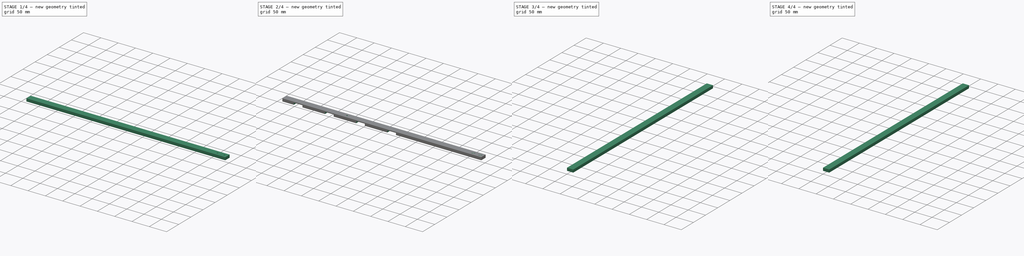
[diagram: build sequence overview — one tinted view per stage of 4, left to right]
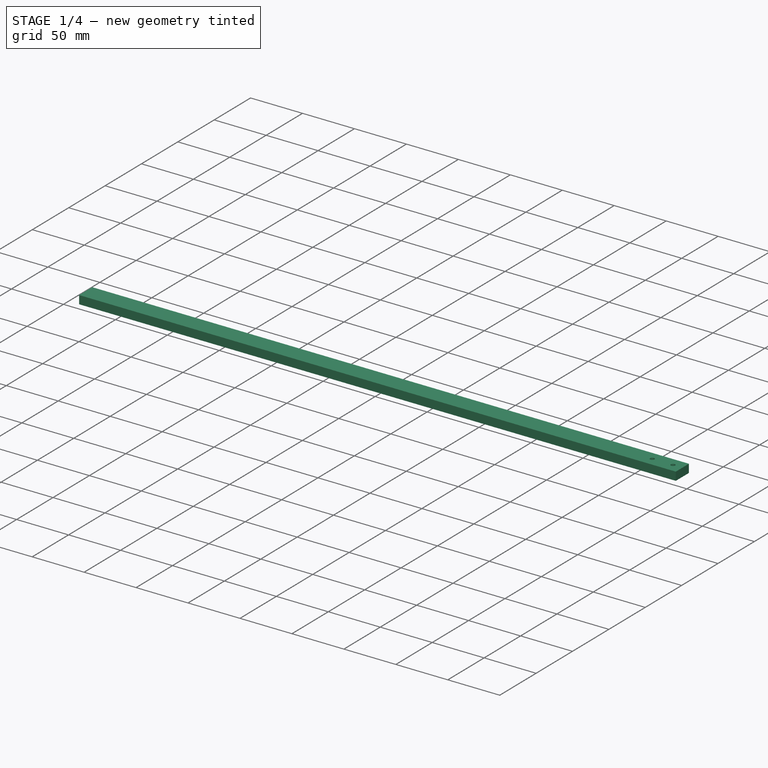
[diagram: stage 1 of 4 — iso view after this stage's code; geometry added in this stage tinted green]
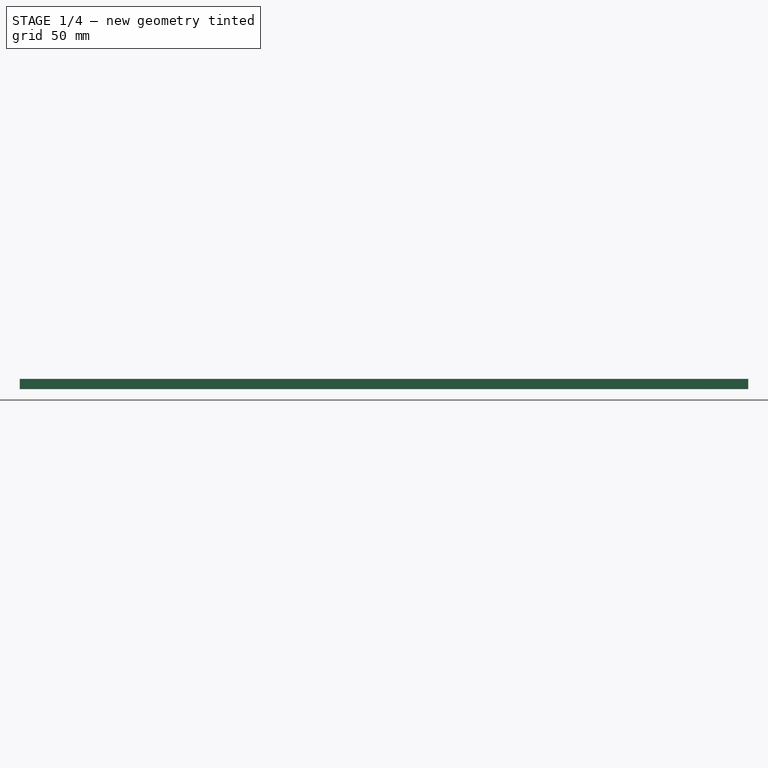
[diagram: stage 1 of 4 — front view after this stage's code; geometry added in this stage tinted green]
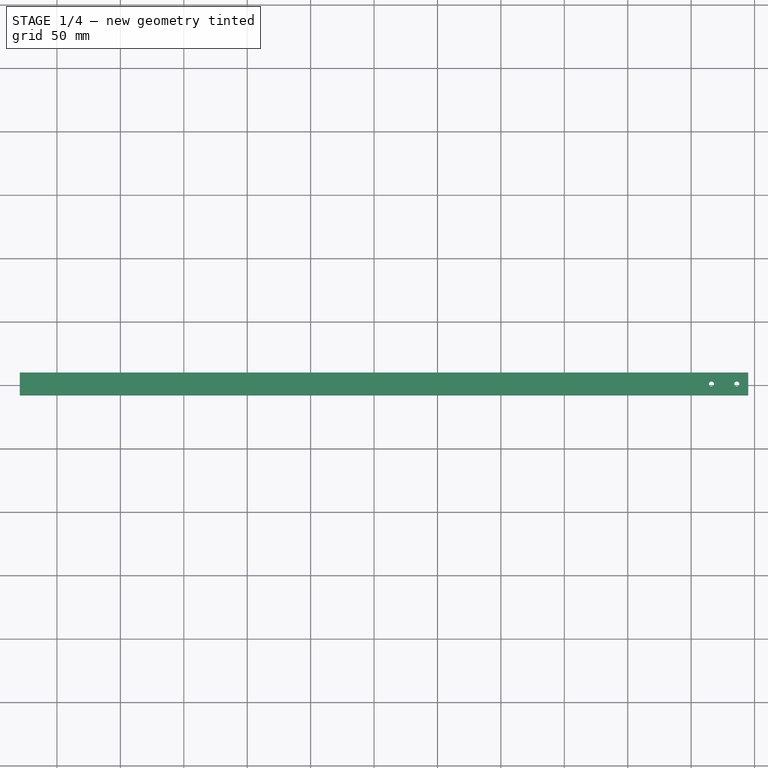
[diagram: stage 1 of 4 — top view after this stage's code; geometry added in this stage tinted green]
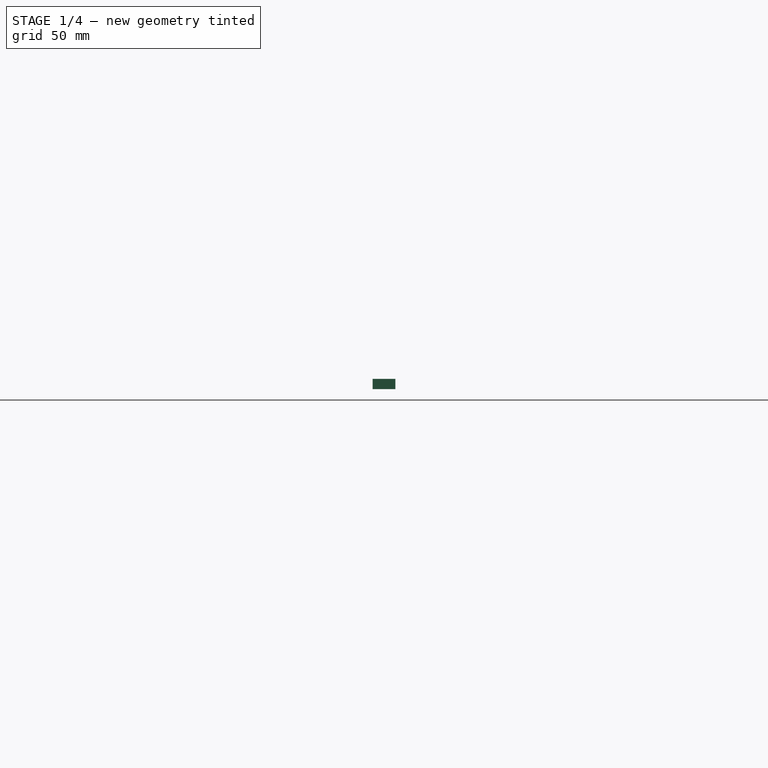
[diagram: stage 1 of 4 — right view after this stage's code; geometry added in this stage tinted green]
FCSTD DOCUMENT  (FreeCAD 0.19R23141 (Git))
Label: locking-bar-cam
License: All rights reserved
LicenseURL: http://en.wikipedia.org/wiki/All_rights_reserved
objects: Path::FeaturePython×6, Sketcher::SketchObject×5, Part::FeaturePython×4, PartDesign::Pocket×3, PartDesign::Chamfer×2, App::FeaturePython×2, App::DocumentObjectGroup×2, Path::FeatureCompoundPython×2, PartDesign::ShapeBinder×1, PartDesign::Pad×1, PartDesign::Body×1
note: 23 computed .brp shape members not serialized (recipe doc carries the construction recipe); baked Part::Feature solids carry a one-line shape summary decoded from their .brp

FEATURE [Sketcher::SketchObject] Sketch  label="MasterSketch"
  MapMode = 5
  sketch-geometry (22):
    g0: Circle CenterX=-238 CenterY=0 CenterZ=0 NormalX=0 NormalY=0 NormalZ=1 AngleXU=0 Radius=16.25
    g1: Circle CenterX=225 CenterY=0 CenterZ=0 NormalX=0 NormalY=0 NormalZ=1 AngleXU=0 Radius=79.25
    g2: Circle CenterX=-159.323 CenterY=24.4049 CenterZ=0 NormalX=0 NormalY=0 NormalZ=1 AngleXU=0 Radius=66.125
    g3: Circle CenterX=-69.3232 CenterY=-36.4177 CenterZ=0 NormalX=0 NormalY=0 NormalZ=1 AngleXU=0 Radius=55.625
    g4: Circle CenterX=20.6768 CenterY=28.9777 CenterZ=0 NormalX=0 NormalY=0 NormalZ=1 AngleXU=0 Radius=81.875
    g5: Circle CenterX=110.677 CenterY=89.8003 CenterZ=0 NormalX=0 NormalY=0 NormalZ=1 AngleXU=0 Radius=66.125
    g6: LineSegment StartX=-275 StartY=216.2 StartZ=0 EndX=275 EndY=216.2 EndZ=0
    g7: LineSegment StartX=275 StartY=216.2 StartZ=0 EndX=275 EndY=-133.8 EndZ=0
    g8: LineSegment StartX=275 StartY=-133.8 StartZ=0 EndX=-275 EndY=-133.8 EndZ=0
    g9: LineSegment StartX=-275 StartY=-133.8 StartZ=0 EndX=-275 EndY=216.2 EndZ=0
    g10: Circle CenterX=-159.323 CenterY=24.4049 CenterZ=0 NormalX=0 NormalY=0 NormalZ=1 AngleXU=0 Radius=53
    g11: Circle CenterX=-69.3232 CenterY=-36.4177 CenterZ=0 NormalX=0 NormalY=0 NormalZ=1 AngleXU=0 Radius=29.375
    g12: Circle CenterX=20.6768 CenterY=28.9777 CenterZ=0 NormalX=0 NormalY=0 NormalZ=1 AngleXU=0 Radius=42.5
    g13: Circle CenterX=110.677 CenterY=89.8003 CenterZ=0 NormalX=0 NormalY=0 NormalZ=1 AngleXU=0 Radius=13.625
    g14: Circle CenterX=225 CenterY=0 CenterZ=0 NormalX=0 NormalY=0 NormalZ=1 AngleXU=0 Radius=63.5
    g15: LineSegment [constr] StartX=-159.323 StartY=24.4049 StartZ=0 EndX=-159.323 EndY=0 EndZ=0
    g16: LineSegment [constr] StartX=-69.3232 StartY=-36.4177 StartZ=0 EndX=-69.3232 EndY=0 EndZ=0
    g17: LineSegment [constr] StartX=20.6768 StartY=28.9777 StartZ=0 EndX=20.6768 EndY=0 EndZ=0
    g18: LineSegment [constr] StartX=110.677 StartY=89.8003 StartZ=0 EndX=110.677 EndY=0 EndZ=0
    g19: LineSegment [constr] StartX=-159.323 StartY=0 StartZ=0 EndX=-69.3232 EndY=0 EndZ=0
    g20: LineSegment [constr] StartX=-69.3232 StartY=0 StartZ=0 EndX=20.6768 EndY=0 EndZ=0
    g21: LineSegment [constr] StartX=20.6768 StartY=0 StartZ=0 EndX=110.677 EndY=0 EndZ=0
  constraints (61):
    c: PointOnObject(g0,g-1)
    c: PointOnObject(g1,g-1)
    c: Coincident(g6,g7)
    c: Coincident(g7,g8)
    c: Coincident(g8,g9)
    c: Coincident(g9,g6)
    c: Horizontal(g6)
    c: Vertical(g7)
    c: Vertical(g9)
    c: DistanceX(g6,g6) = 550
    c: DistanceY(g9,g9) = 350
    c: Radius(g2) = 66.125
    c: Radius(g0) = 16.25
    c: Tangent(g2,g0)
    c: Radius(g3) = 55.625
    c: Coincident(g10,g2)
    c: Coincident(g11,g3)
    c: Coincident(g12,g4)
    c: Coincident(g13,g5)
    c: Coincident(g14,g1)
    c: Radius(g10) = 53
    c: Radius(g11) = 29.375
    c: Tangent(g3,g10)
    c: Tangent(g4,g11)
    c: Tangent(g5,g12)
    c: Tangent(g1,g5)
    c: Radius(g4) = 81.875
    c: Radius(g12) = 42.5
    c: Radius(g5) = 66.125
    c: Radius(g13) = 13.625
    c: Coincident(g15,g2)
    c: PointOnObject(g15,g-1)
    c: Coincident(g16,g3)
    c: PointOnObject(g16,g-1)
    c: Vertical(g16)
    c: Coincident(g17,g4)
    c: PointOnObject(g17,g-1)
    c: Vertical(g17)
    c: Coincident(g18,g5)
    c: PointOnObject(g18,g-1)
    c: Vertical(g18)
    c: Vertical(g15)
    c: Coincident(g19,g15)
    c: Coincident(g19,g16)
    c: Coincident(g20,g16)
    c: Coincident(g20,g17)
    c: Coincident(g21,g17)
    c: Coincident(g21,g18)
    c: Radius(g1) = 79.25
    c: Radius(g14) = 63.5
    c: Distance(g19) = 90
    c: DistanceX(g6,g0) = 37
    c: Symmetric(g8,g7,g-2)
    c: Equal(g19,g20)
    c: Equal(g20,g21)
    c: Distance(g2,g3) = 108.625
    c: Distance(g3,g4) = 111.25
    c: Distance(g4,g5) = 108.625
    c: Distance(g5,g1) = 145.375
    c: DistanceY(g8,g-1) = 133.8
    c: DistanceX(g1,g6) = 50
FEATURE [PartDesign::ShapeBinder] ShapeBinder007
  Support = -> [Sketch]
  TraceSupport = false
FEATURE [Sketcher::SketchObject] Sketch044
  ExternalGeometry = -> [ShapeBinder007]
  MapMode = 5
  Support = -> [XY_Plane016]
  sketch-geometry (6):
    g0: LineSegment [constr] StartX=225 StartY=0 StartZ=0 EndX=264.625 EndY=-68.6325 EndZ=0
    g1: LineSegment [constr] StartX=280.663 StartY=-56.411 StartZ=0 EndX=310.663 EndY=-108.373 EndZ=0
    g2: LineSegment StartX=-229.323 StartY=-90 StartZ=0 EndX=345 EndY=-90 EndZ=0
    g3: LineSegment StartX=345 StartY=-90 StartZ=0 EndX=345 EndY=-108 EndZ=0
    g4: LineSegment StartX=345 StartY=-108 StartZ=0 EndX=-229.323 EndY=-108 EndZ=0
    g5: LineSegment StartX=-229.323 StartY=-108 StartZ=0 EndX=-229.323 EndY=-90 EndZ=0
  constraints (20):
    c: Coincident(g0,g-4)
    c: PointOnObject(g0,g-4)
    c: Angle(g0) = -1.0472
    c: PointOnObject(g1,g-4)
    c: Parallel(g1,g0)
    c: Distance(g1,g0) = 20
    c: Distance(g1) = 60
    c: Coincident(g2,g3)
    c: Coincident(g3,g4)
    c: Coincident(g4,g5)
    c: Coincident(g5,g2)
    c: Horizontal(g2)
    c: Horizontal(g4)
    c: Vertical(g3)
    c: Vertical(g5)
    c: DistanceY(g5,g5) = 18
    c: DistanceY(g2,g-1) = 90
    c: DistanceX(g0,g2) = 120
    c: DistanceX(g2,g-5) = 70
    c: DistanceX(g4,g4) = 574.323
FEATURE [PartDesign::Pad] Pad022
  Direction = (1,1,1)
  Length = 8
  Length2 = 100
  Profile = -> Sketch044
  Refine = true
  Type = 0
FEATURE [Sketcher::SketchObject] Sketch049
  ExternalGeometry = -> [Pad022]
  MapMode = 5
  Placement = pos=(0,0,8) rot=(0,0,1;0rad)
  Support = -> [Pad022]
  sketch-geometry (3):
    g0: Circle CenterX=316 CenterY=-99 CenterZ=0 NormalX=0 NormalY=0 NormalZ=1 AngleXU=0 Radius=2
    g1: Circle CenterX=336 CenterY=-99 CenterZ=0 NormalX=0 NormalY=0 NormalZ=1 AngleXU=0 Radius=2
    g2: LineSegment [constr] StartX=316 StartY=-99 StartZ=0 EndX=345 EndY=-99 EndZ=0
  constraints (8):
    c: Coincident(g2,g0)
    c: PointOnObject(g2,g-3)
    c: Symmetric(g-3,g-3,g2)
    c: PointOnObject(g1,g2)
    c: DistanceX(g0,g1) = 20
    c: DistanceX(g1,g-3) = 9
    c: Radius(g1) = 2
    c: Equal(g0,g1)
FEATURE [PartDesign::Pocket] Pocket031
  BaseFeature = -> Pad022
  Length = 5
  Length2 = 100
  Profile = -> Sketch049
  Refine = true
  Type = 1
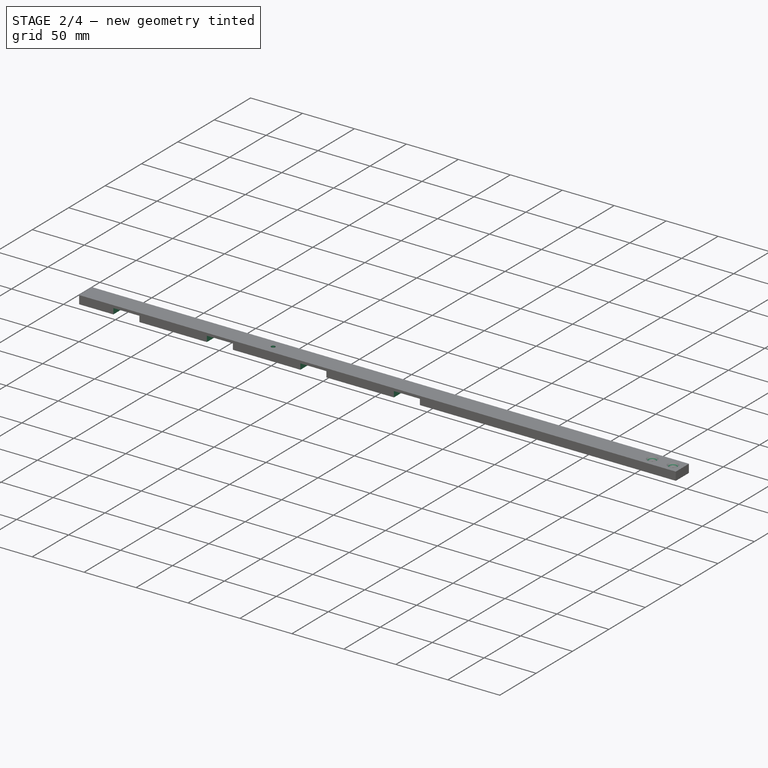
[diagram: stage 2 of 4 — iso view after this stage's code; geometry added in this stage tinted green]
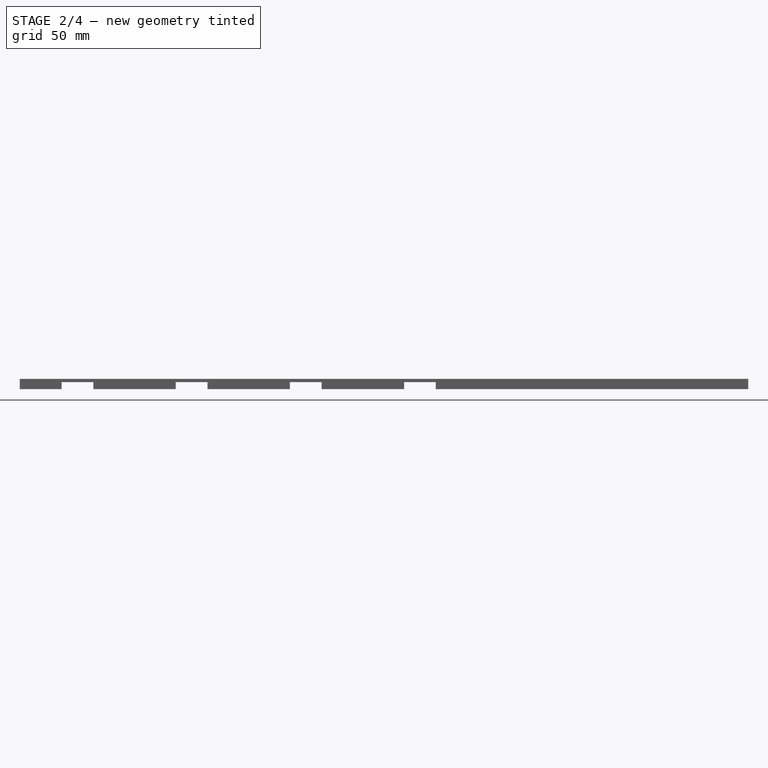
[diagram: stage 2 of 4 — front view after this stage's code; geometry added in this stage tinted green]
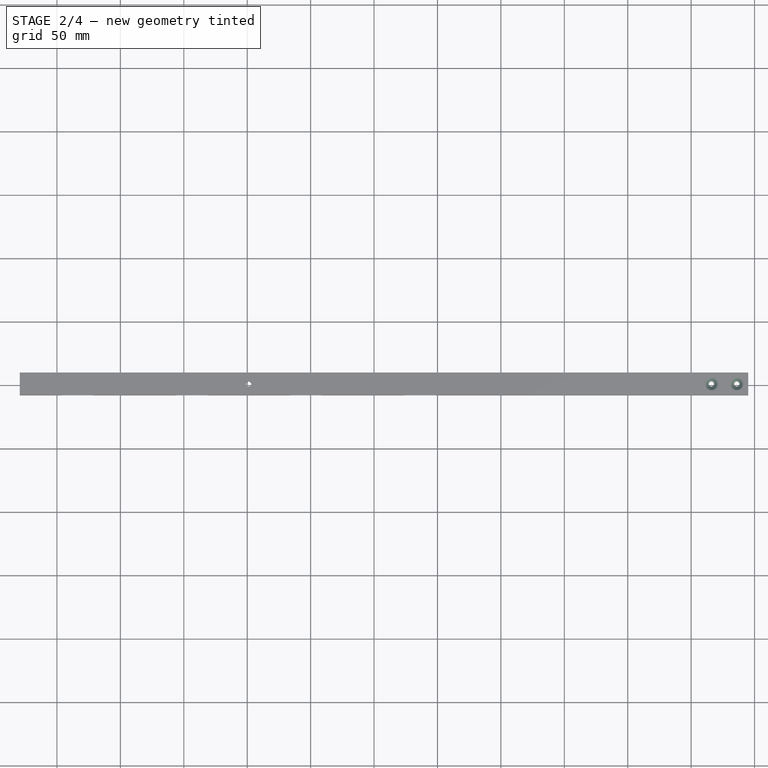
[diagram: stage 2 of 4 — top view after this stage's code; geometry added in this stage tinted green]
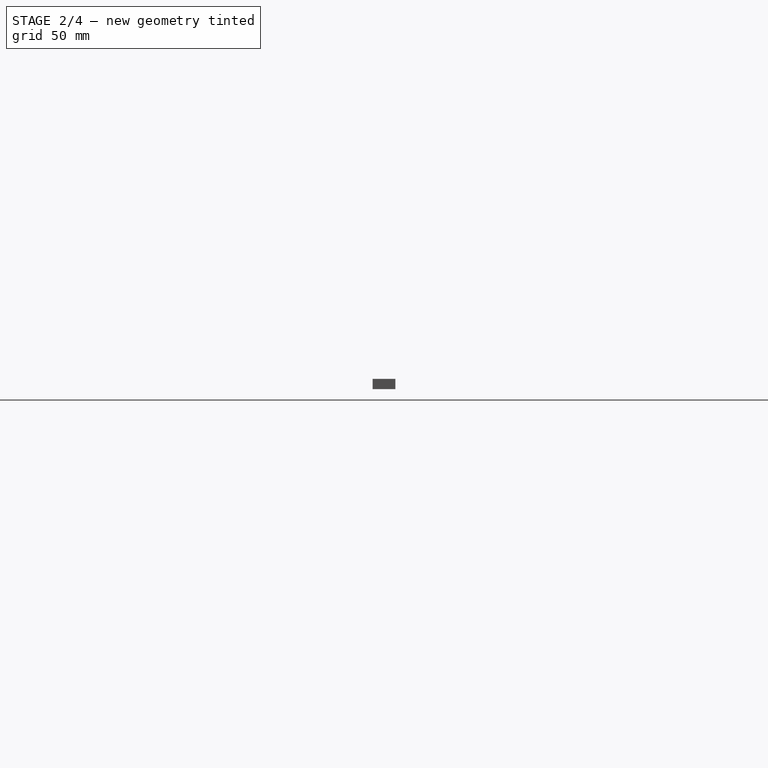
[diagram: stage 2 of 4 — right view after this stage's code; geometry added in this stage tinted green]
FEATURE [PartDesign::Chamfer] Chamfer017
  Angle = 45
  Base = -> Pocket031 [Edge15,Edge16]
  BaseFeature = -> Pocket031
  ChamferType = 0
  FlipDirection = false
  Refine = true
  Size = 3
  Size2 = 1
  SupportTransform = false
FEATURE [Sketcher::SketchObject] Sketch050
  ExternalGeometry = -> [ShapeBinder007,Chamfer017]
  MapMode = 5
  Placement = pos=(0,0,0) rot=(1,0,0;3.14159rad)
  Support = -> [Chamfer017]
  sketch-geometry (24):
    g0: LineSegment StartX=-196.323 StartY=108 StartZ=0 EndX=-171.323 EndY=108 EndZ=0
    g1: LineSegment StartX=-171.323 StartY=108 StartZ=0 EndX=-171.323 EndY=90 EndZ=0
    g2: LineSegment StartX=-171.323 StartY=90 StartZ=0 EndX=-196.323 EndY=90 EndZ=0
    g3: LineSegment StartX=-196.323 StartY=90 StartZ=0 EndX=-196.323 EndY=108 EndZ=0
    g4: LineSegment StartX=-106.323 StartY=108 StartZ=0 EndX=-81.3232 EndY=108 EndZ=0
    g5: LineSegment StartX=-81.3232 StartY=108 StartZ=0 EndX=-81.3232 EndY=90 EndZ=0
    g6: LineSegment StartX=-81.3232 StartY=90 StartZ=0 EndX=-106.323 EndY=90 EndZ=0
    g7: LineSegment StartX=-106.323 StartY=90 StartZ=0 EndX=-106.323 EndY=108 EndZ=0
    g8: LineSegment StartX=-16.3232 StartY=108 StartZ=0 EndX=8.67682 EndY=108 EndZ=0
    g9: LineSegment StartX=8.67682 StartY=108 StartZ=0 EndX=8.67682 EndY=90 EndZ=0
    g10: LineSegment StartX=8.67682 StartY=90 StartZ=0 EndX=-16.3232 EndY=90 EndZ=0
    g11: LineSegment StartX=-16.3232 StartY=90 StartZ=0 EndX=-16.3232 EndY=108 EndZ=0
    g12: LineSegment StartX=73.6768 StartY=108 StartZ=0 EndX=98.6768 EndY=108 EndZ=0
    g13: LineSegment StartX=98.6768 StartY=108 StartZ=0 EndX=98.6768 EndY=90 EndZ=0
    g14: LineSegment StartX=98.6768 StartY=90 StartZ=0 EndX=73.6768 EndY=90 EndZ=0
    g15: LineSegment StartX=73.6768 StartY=90 StartZ=0 EndX=73.6768 EndY=108 EndZ=0
    g16: LineSegment [constr] StartX=-159.323 StartY=-24.4049 StartZ=0 EndX=-159.323 EndY=90 EndZ=0
    g17: LineSegment [constr] StartX=-69.3232 StartY=36.4177 StartZ=0 EndX=-69.3232 EndY=90 EndZ=0
    g18: LineSegment [constr] StartX=20.6768 StartY=-28.9777 StartZ=0 EndX=20.6768 EndY=90 EndZ=0
    g19: LineSegment [constr] StartX=110.677 StartY=-89.8003 StartZ=0 EndX=110.677 EndY=90 EndZ=0
    g20: LineSegment [constr] StartX=-171.323 StartY=90 StartZ=0 EndX=-159.323 EndY=90 EndZ=0
    g21: LineSegment [constr] StartX=-81.3232 StartY=90 StartZ=0 EndX=-69.3232 EndY=90 EndZ=0
    g22: LineSegment [constr] StartX=8.67682 StartY=90 StartZ=0 EndX=20.6768 EndY=90 EndZ=0
    g23: LineSegment [constr] StartX=98.6768 StartY=90 StartZ=0 EndX=110.677 EndY=90 EndZ=0
  constraints (68):
    c: Coincident(g0,g1)
    c: Coincident(g1,g2)
    c: Coincident(g2,g3)
    c: Coincident(g3,g0)
    c: Horizontal(g0)
    c: Horizontal(g2)
    c: Vertical(g1)
    c: Vertical(g3)
    c: PointOnObject(g0,g-7)
    c: PointOnObject(g1,g-8)
    c: Coincident(g4,g5)
    c: Coincident(g5,g6)
    c: Coincident(g6,g7)
    c: Coincident(g7,g4)
    c: Horizontal(g4)
    c: Horizontal(g6)
    c: Vertical(g5)
    c: Vertical(g7)
    c: PointOnObject(g4,g-7)
    c: PointOnObject(g5,g-8)
    c: Coincident(g8,g9)
    c: Coincident(g9,g10)
    c: Coincident(g10,g11)
    c: Coincident(g11,g8)
    c: Horizontal(g8)
    c: Horizontal(g10)
    c: Vertical(g9)
    c: Vertical(g11)
    c: PointOnObject(g8,g-7)
    c: PointOnObject(g9,g-8)
    c: Coincident(g12,g13)
    c: Coincident(g13,g14)
    c: Coincident(g14,g15)
    c: Coincident(g15,g12)
    c: Horizontal(g12)
    c: Horizontal(g14)
    c: Vertical(g13)
    c: Vertical(g15)
    c: PointOnObject(g12,g-7)
    c: PointOnObject(g13,g-8)
    c: Equal(g0,g4)
    c: Equal(g4,g8)
    c: Equal(g8,g12)
    c: DistanceX(g0,g0) = 25
    c: Coincident(g16,g-3)
    c: PointOnObject(g16,g-8)
    c: Vertical(g16)
    c: PointOnObject(g17,g-8)
    c: Coincident(g18,g-5)
    c: PointOnObject(g18,g-8)
    c: Vertical(g18)
    c: Coincident(g19,g-6)
    c: PointOnObject(g19,g-8)
    c: Vertical(g19)
    c: Coincident(g-4,g17)
    c: Vertical(g17)
    c: Coincident(g20,g1)
    c: Coincident(g20,g16)
    c: Coincident(g21,g5)
    c: Coincident(g21,g17)
    c: Coincident(g22,g9)
    c: Coincident(g22,g18)
    c: Coincident(g23,g13)
    c: Coincident(g23,g19)
    c: Equal(g23,g22)
    c: Equal(g22,g21)
    c: Equal(g21,g20)
    c: DistanceX(g20,g20) = 12
FEATURE [PartDesign::Pocket] Pocket032
  BaseFeature = -> Chamfer017
  Length = 5.5
  Length2 = 100
  Profile = -> Sketch050
  Refine = true
  Type = 0
FEATURE [Sketcher::SketchObject] Sketch070
  ExternalGeometry = -> [Pocket032]
  MapMode = 5
  Placement = pos=(0,0,8) rot=(0,0,1;0rad)
  Support = -> [Pocket032]
  sketch-geometry (2):
    g0: LineSegment [constr] StartX=-48.8232 StartY=-108 StartZ=0 EndX=-48.8232 EndY=-90 EndZ=0
    g1: Circle CenterX=-48.8232 CenterY=-99 CenterZ=0 NormalX=0 NormalY=0 NormalZ=1 AngleXU=0 Radius=2
  constraints (5):
    c: PointOnObject(g0,g-6)
    c: PointOnObject(g0,g-5)
    c: Symmetric(g-3,g-4,g0)
    c: Radius(g1) = 2
    c: Symmetric(g0,g0,g1)
FEATURE [PartDesign::Pocket] Pocket045
  BaseFeature = -> Pocket032
  Length = 5
  Length2 = 100
  Profile = -> Sketch070
  Refine = true
  Type = 1
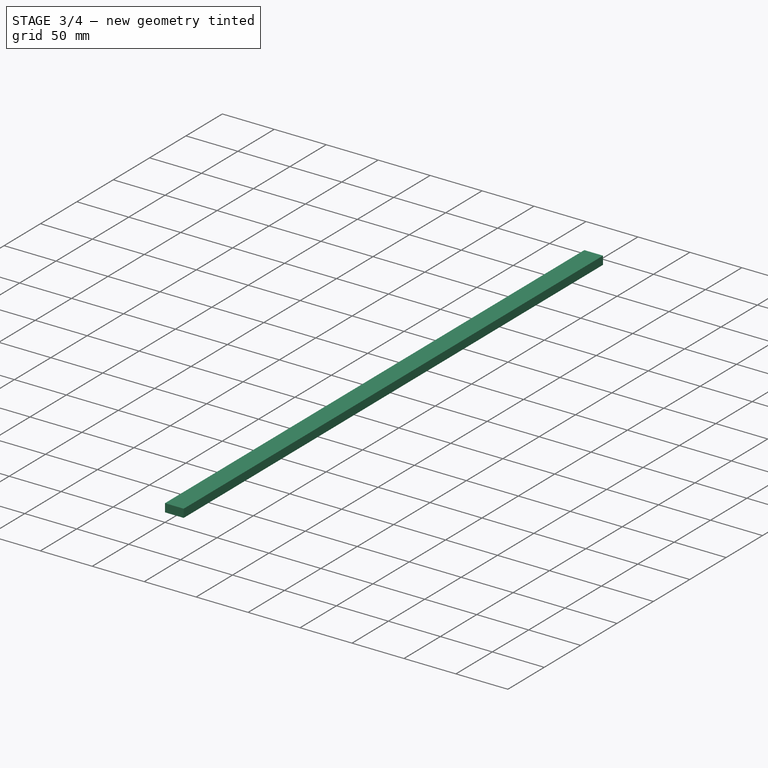
[diagram: stage 3 of 4 — iso view after this stage's code; geometry added in this stage tinted green]
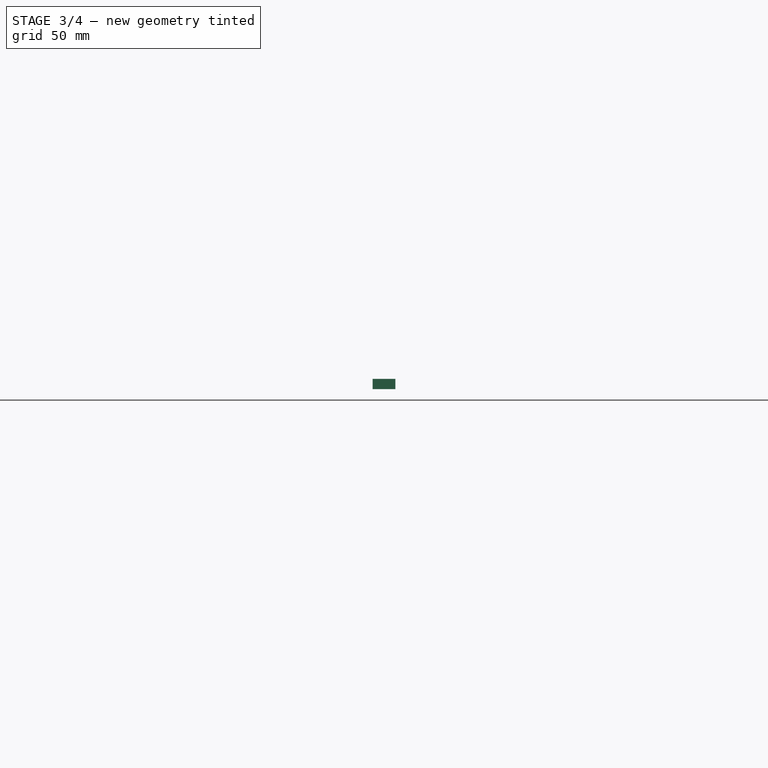
[diagram: stage 3 of 4 — front view after this stage's code; geometry added in this stage tinted green]
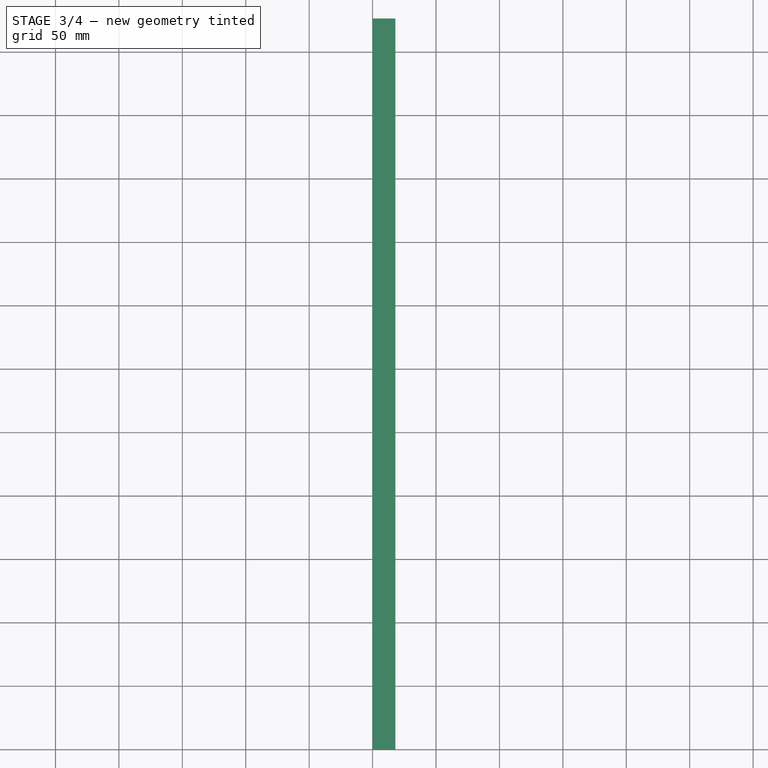
[diagram: stage 3 of 4 — top view after this stage's code; geometry added in this stage tinted green]
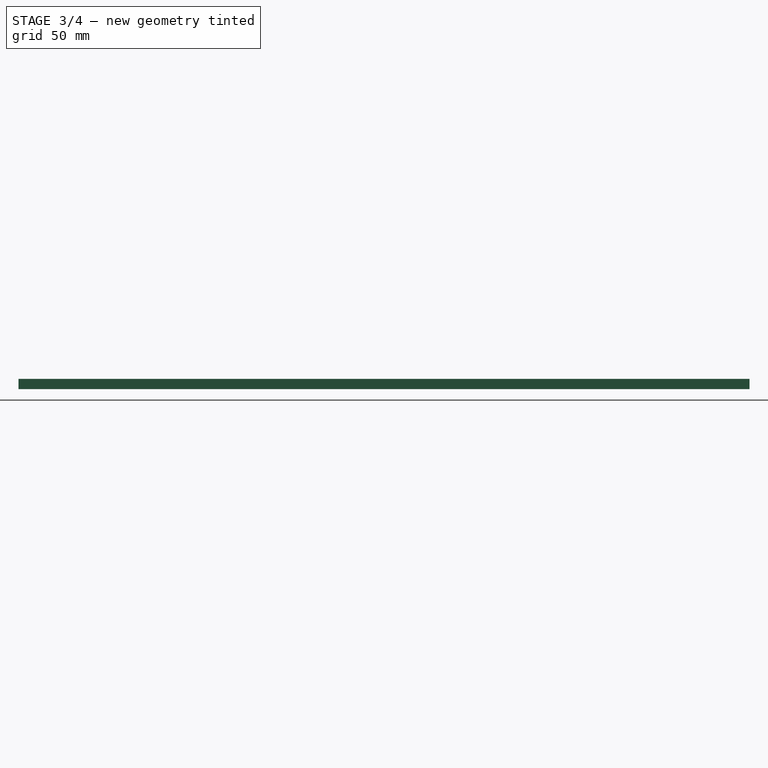
[diagram: stage 3 of 4 — right view after this stage's code; geometry added in this stage tinted green]
FEATURE [PartDesign::Chamfer] Chamfer029
  Angle = 45
  Base = -> Pocket045 [Edge51]
  BaseFeature = -> Pocket045
  ChamferType = 0
  FlipDirection = false
  Refine = true
  Size = 3
  Size2 = 1
  SupportTransform = false
FEATURE [Path::FeaturePython] Adaptive  # Path/CAM operation (typed FeaturePython)
  Active = true
  Base = -> [Clone]
  ClearanceHeight = 15
  CoolantMode = None
  CycleTime = 00:14:26
  FinalDepth = -5.5
  FinishDepth = 0
  ForceInsideOut = false
  HelixAngle = 5
  HelixDiameterLimit = 0
  KeepToolDownRatio = 3
  LiftDistance = 0
  OpFinalDepth = -5.5
  OpStartDepth = 0
  OpStockZMax = -1.8e-15
  OpStockZMin = -8
  OpToolDiameter = 5
  OperationType = 0
  SafeHeight = 3
  Side = 1
  StartDepth = 0
  StepDown = 5
  StepOver = 45
  StockToLeave = 0
  StopProcessing = false
  Stopped = false
  Tolerance = 0.1
  ToolController = -> Default_Tool
  UseHelixArcs = false
  expr: StartDepth = OpStartDepth
  expr: FinalDepth = OpFinalDepth
  expr: StepDown = OpToolDiameter
  expr: SafeHeight = OpStockZMax + SetupSheet.SafeHeightOffset
  expr: ClearanceHeight = OpStockZMax + SetupSheet.ClearanceHeightOffset
FEATURE [Path::FeatureCompoundPython] Operations  # Path/CAM operation (typed FeaturePython)
  Group = -> [Adaptive]
  UsePlacements = false
FEATURE [Path::FeaturePython] Job  # Path/CAM operation (typed FeaturePython)
  CycleTime = 00:14:26
  Fixtures = G54
  GeometryTolerance = 0.01
  LastPostProcessDate = 2020-12-03 16:21:06.434577
  LastPostProcessOutput = <userpath>/cad/gears-puzzle-2/gcode/locking-bar-1.gcode
  Model = -> Model
  Operations = -> Operations
  OrderOutputBy = 0
  PostProcessor = 4
  SetupSheet = -> SetupSheet
  SplitOutput = false
  Stock = -> Stock
  ToolController = -> [Default_Tool]
FEATURE [App::FeaturePython] SetupSheet001  # Path/CAM operation (typed FeaturePython)
  ClearanceHeightExpression = OpStockZMax+SetupSheet.ClearanceHeightOffset
  ClearanceHeightOffset = 15
  CoolantMode = 0
  CoolantModes = None | Flood | Mist
  FinalDepthExpression = OpFinalDepth
  HorizRapid = 0
  SafeHeightExpression = OpStockZMax+SetupSheet.SafeHeightOffset
  SafeHeightOffset = 3
  StartDepthExpression = OpStartDepth
  StepDownExpression = OpToolDiameter
  VertRapid = 0
FEATURE [Path::FeaturePython] Default_Tool001  label="Default Tool001"  # Path/CAM operation (typed FeaturePython)
  HorizFeed = 16.6667
  HorizRapid = 0
  SpindleDir = 0
  SpindleSpeed = 24000
  ToolNumber = 1
  VertFeed = 1.66667
  VertRapid = 0
  expr: HorizRapid = SetupSheet001.HorizRapid
  expr: VertRapid = SetupSheet001.VertRapid
FEATURE [Part::FeaturePython] Clone001  label="Model-LockingBar001"  # Draft clone (typed FeaturePython)
  AttacherType = Attacher::AttachEngine3D
  Fuse = false
  Objects = -> [Body016]
  PathResource = Model
  Placement = pos=(-90,346,1.1e-14) rot=(0.707107,-0.707107,0;3.14159rad)
  Scale = (1,1,1)
FEATURE [App::DocumentObjectGroup] Model001
  Group = -> [Clone001]
FEATURE [Part::FeaturePython] Stock001  # WARN: FeaturePython — macro-defined, semantics opaque (R4)
  Base = -> Model001
  ExtXneg = 0
  ExtXpos = 0
  ExtYneg = 1
  ExtYpos = 1
  ExtZneg = 0
  ExtZpos = 0
  Placement = pos=(0,1,-8) rot=(0,0,1;0rad)
  StockType = FromBase
FEATURE [Path::FeaturePython] Drilling  # Path/CAM operation (typed FeaturePython)
  Active = true
  AddTipLength = false
  AttemptInverseAngle = false
  Base = -> [Clone001]
  ClearanceHeight = 15
  CoolantMode = None
  CycleTime = 00:00:16
  DwellEnabled = false
  DwellTime = 1
  EnableRotation = 0
  ExtraOffset = 0
  FinalDepth = -1
  InverseAngle = false
  OpFinalDepth = -5
  OpStartDepth = 1.1e-14
  OpStockZMax = -1.8e-15
  OpStockZMin = -8
  OpToolDiameter = 5
  PeckDepth = 3.75
  PeckEnabled = false
  RetractHeight = 1
  ReturnLevel = 0
  ReverseDirection = false
  SafeHeight = 3
  StartDepth = 1.1e-14
  ToolController = -> Default_Tool001
  expr: PeckDepth = OpToolDiameter * 0.75
  expr: ClearanceHeight = OpStockZMax + SetupSheet.ClearanceHeightOffset
  expr: RetractHeight = OpStartDepth + 1mm
  expr: SafeHeight = OpStockZMax + SetupSheet.SafeHeightOffset
  expr: FinalDepth = -1
  expr: StartDepth = OpStartDepth
FEATURE [Path::FeatureCompoundPython] Operations001  # Path/CAM operation (typed FeaturePython)
  Group = -> [Drilling]
  UsePlacements = false
FEATURE [Path::FeaturePython] Job001  # Path/CAM operation (typed FeaturePython)
  CycleTime = 00:00:16
  Fixtures = G54
  GeometryTolerance = 0.01
  LastPostProcessDate = 2020-12-03 16:25:05.083842
  LastPostProcessOutput = <userpath>/cad/gears-puzzle-2/gcode/locking-bar-spot-drill.gcode
  Model = -> Model001
  Operations = -> Operations001
  OrderOutputBy = 0
  PostProcessor = 4
  SetupSheet = -> SetupSheet001
  SplitOutput = false
  Stock = -> Stock001
  ToolController = -> [Default_Tool001]
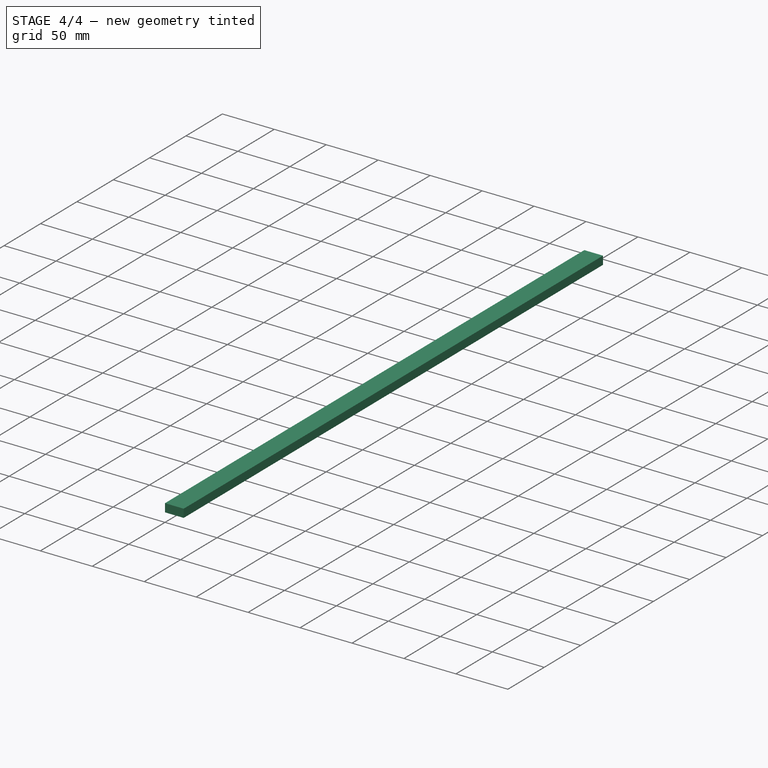
[diagram: stage 4 of 4 — iso view after this stage's code; geometry added in this stage tinted green]
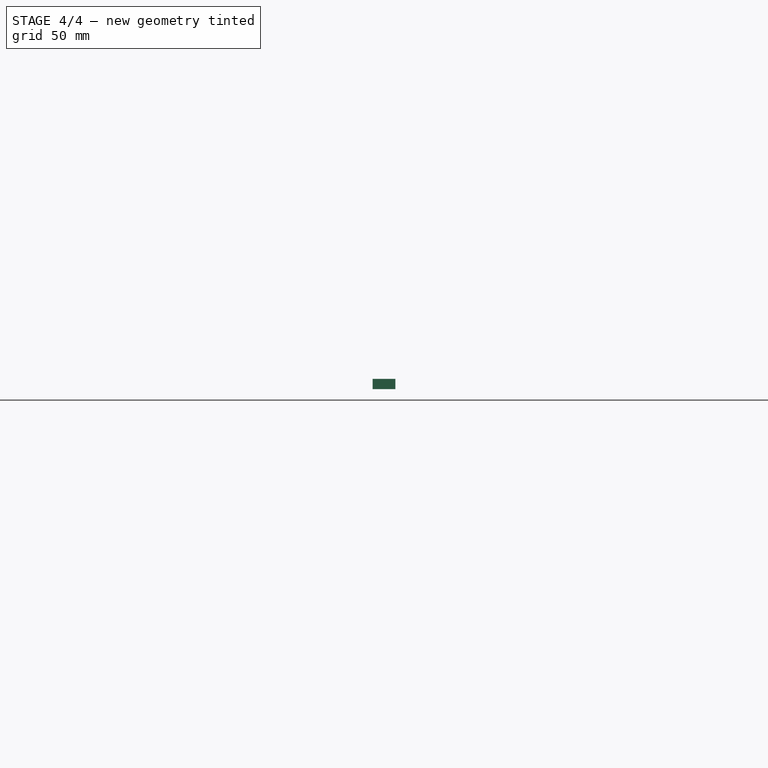
[diagram: stage 4 of 4 — front view after this stage's code; geometry added in this stage tinted green]
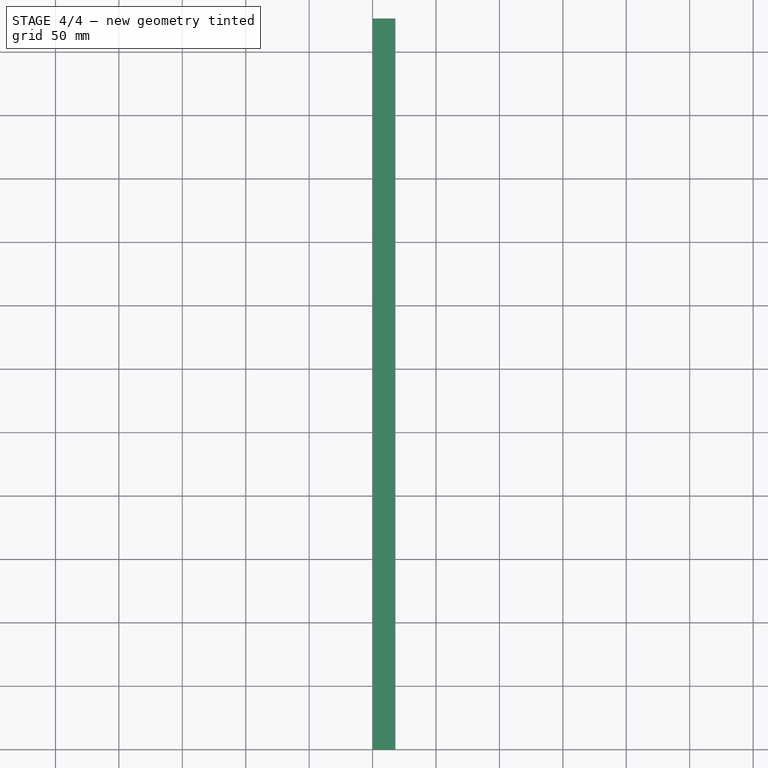
[diagram: stage 4 of 4 — top view after this stage's code; geometry added in this stage tinted green]
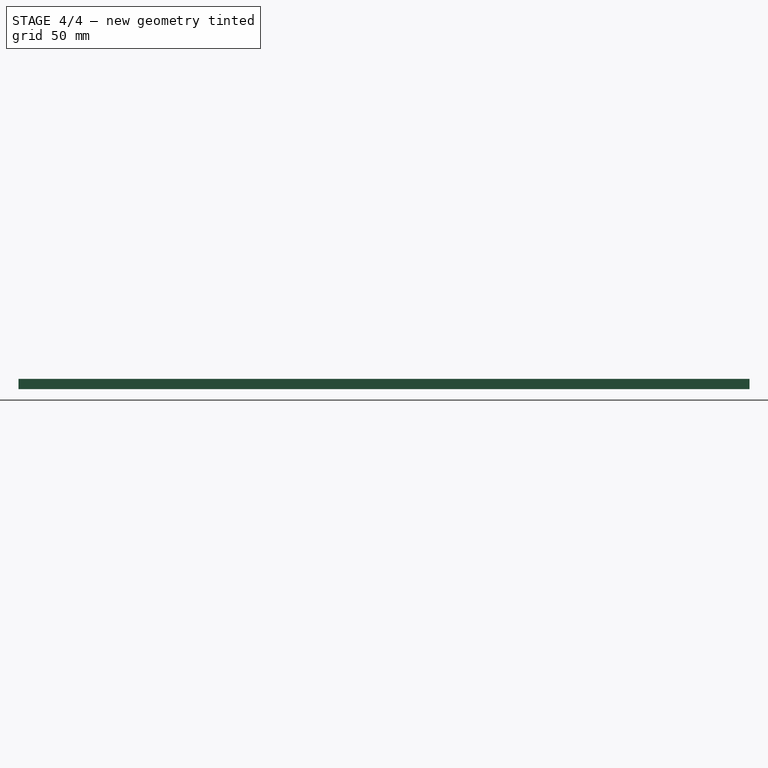
[diagram: stage 4 of 4 — right view after this stage's code; geometry added in this stage tinted green]
FEATURE [PartDesign::Body] Body016  label="LockingBar"
  Group = -> [Sketch044,ShapeBinder007,Pad022,Sketch049,Pocket031,Chamfer017,Sketch050,Pocket032,Sketch070,Pocket045,Chamfer029]
  Origin = -> Origin016
  Placement = pos=(0,0,15.5) rot=(1,0,0;3.14159rad)
  Tip = -> Chamfer029
FEATURE [App::FeaturePython] SetupSheet  # Path/CAM operation (typed FeaturePython)
  ClearanceHeightExpression = OpStockZMax+SetupSheet.ClearanceHeightOffset
  ClearanceHeightOffset = 15
  CoolantMode = 0
  CoolantModes = None | Flood | Mist
  FinalDepthExpression = OpFinalDepth
  HorizRapid = 0
  SafeHeightExpression = OpStockZMax+SetupSheet.SafeHeightOffset
  SafeHeightOffset = 3
  StartDepthExpression = OpStartDepth
  StepDownExpression = OpToolDiameter
  VertRapid = 0
FEATURE [Part::FeaturePython] Clone  label="Model-LockingBar"  # Draft clone (typed FeaturePython)
  AttacherType = Attacher::AttachEngine3D
  Fuse = false
  Objects = -> [Body016]
  PathResource = Model
  Placement = pos=(-90,346,1.1e-14) rot=(0.707107,-0.707107,0;3.14159rad)
  Scale = (1,1,1)
FEATURE [App::DocumentObjectGroup] Model
  Group = -> [Clone]
FEATURE [Path::FeaturePython] Default_Tool  label="Default Tool"  # Path/CAM operation (typed FeaturePython)
  HorizFeed = 16.6667
  HorizRapid = 0
  SpindleDir = 0
  SpindleSpeed = 24000
  ToolNumber = 1
  VertFeed = 1.66667
  VertRapid = 0
  expr: VertRapid = SetupSheet.VertRapid
  expr: HorizRapid = SetupSheet.HorizRapid
FEATURE [Part::FeaturePython] Stock  # WARN: FeaturePython — macro-defined, semantics opaque (R4)
  Base = -> Model
  ExtXneg = 0
  ExtXpos = 0
  ExtYneg = 1
  ExtYpos = 1
  ExtZneg = 0
  ExtZpos = 0
  Placement = pos=(0,1,-8) rot=(0,0,1;0rad)
  StockType = FromBase
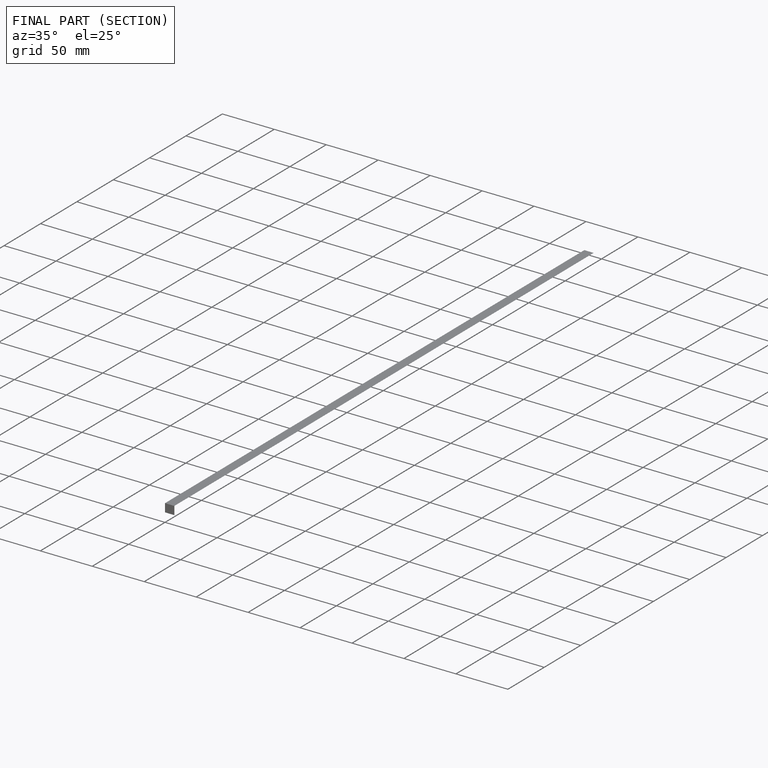
[diagram: finished part — half-section view (interior)]
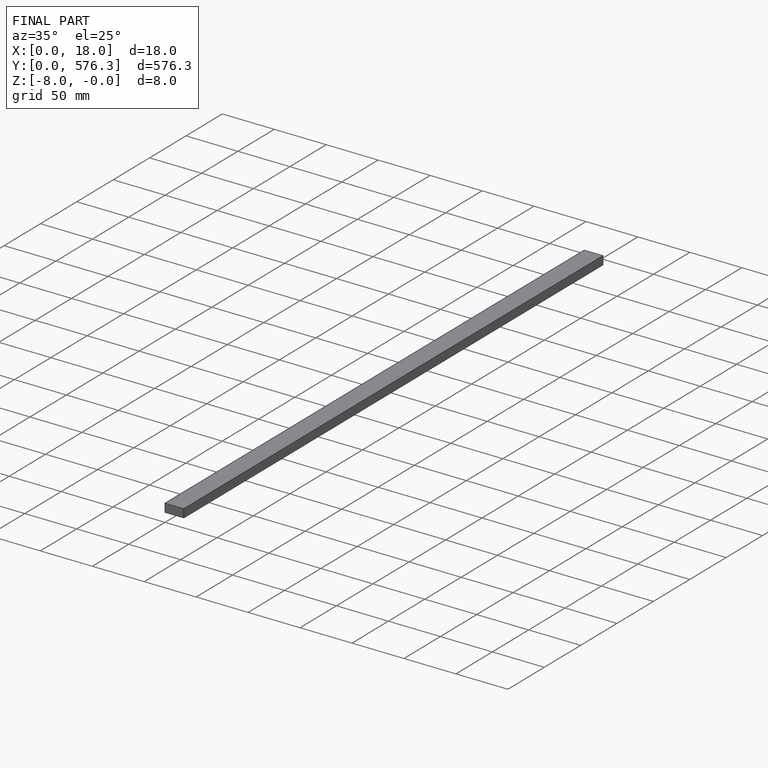
[diagram: finished part — iso view with bounding-box wireframe]
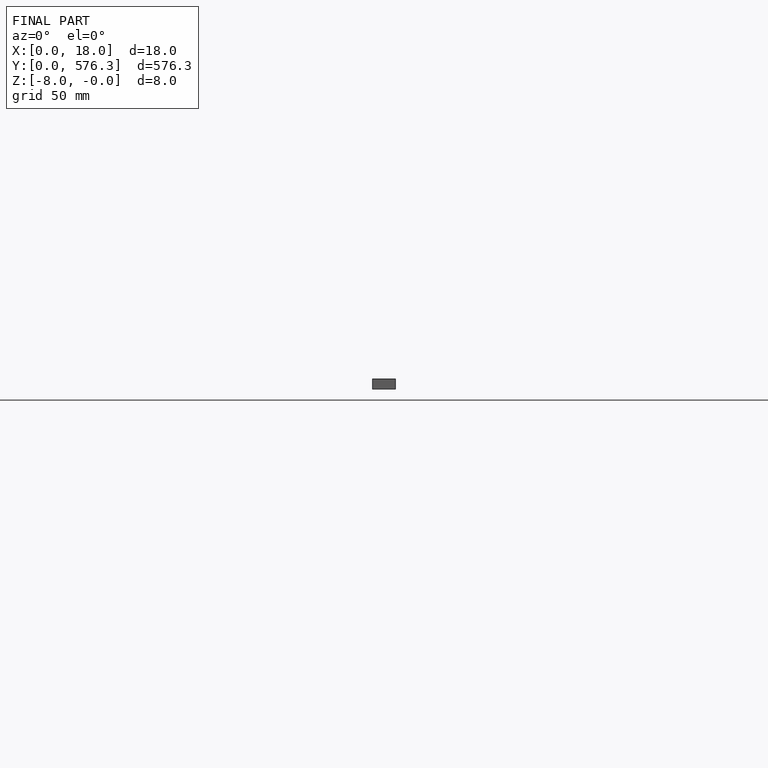
[diagram: finished part — front view with bounding-box wireframe]
